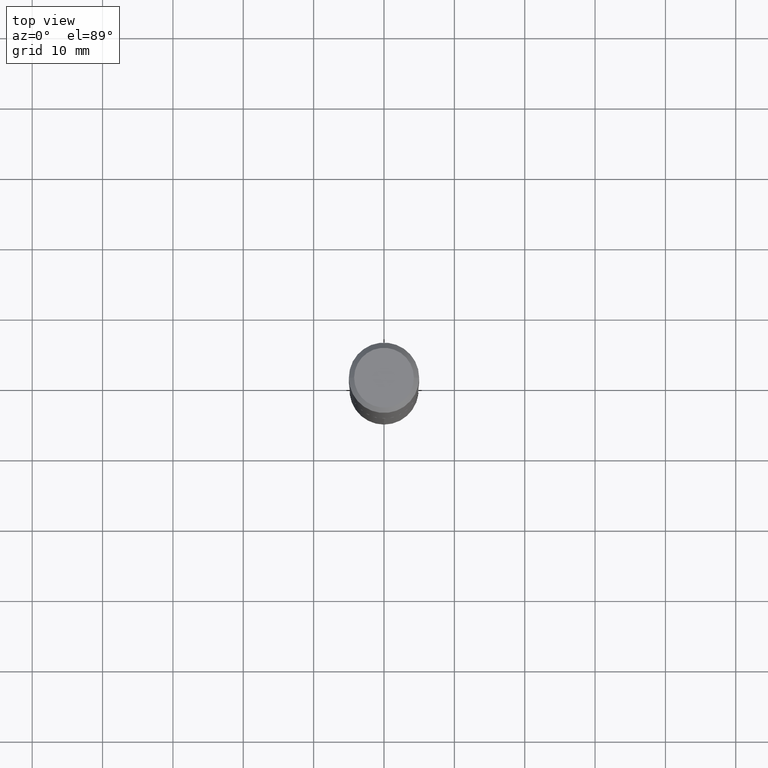
[diagram: clean part render]
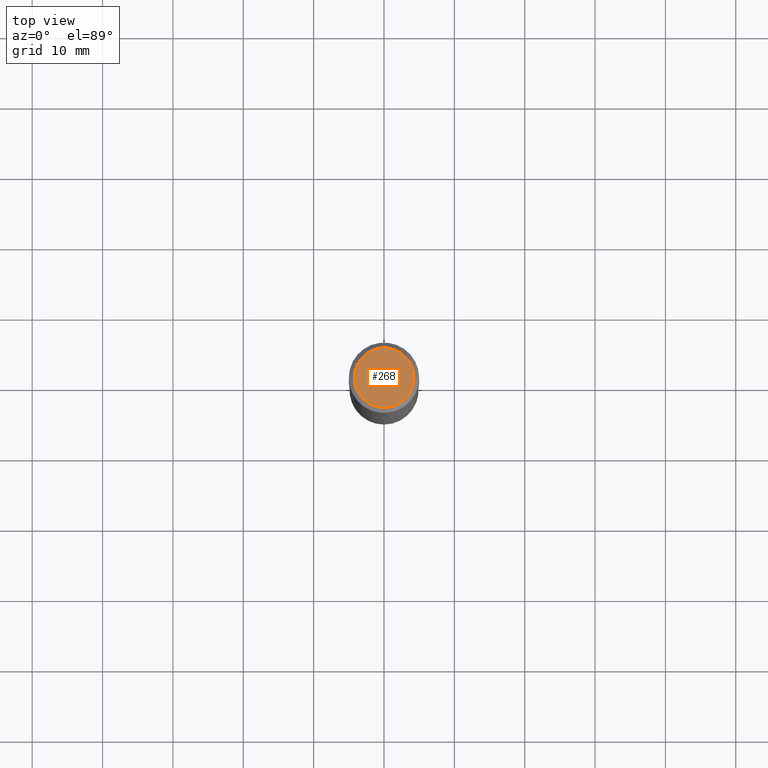
[diagram: same view with one face highlighted and labeled with its STEP entity id]
A machine part, top view. The second image highlights one B-rep face of the part: STEP entity #268.
In plain terms, the highlighted planar face has unit normal (0, -0, -1).
Its self-contained STEP definition (entity closure, byte-faithful):
#11 = CIRCLE ( 'NONE', #141, 0.1673224999999999851 ) ;
#13 = CARTESIAN_POINT ( 'NONE',  ( -0.1673224999999999851, 1.219954130253505263E-15, 4.096137381439757534E-18 ) ) ;
#17 = CARTESIAN_POINT ( 'NONE',  ( -1.001697619218021790E-46, 1.430158722866389718E-32, 4.096137381448108366E-18 ) ) ;
#65 = DIRECTION ( 'NONE',  ( 1.000000000000000000, -6.982962677686267499E-15, 4.876294436782262290E-29 ) ) ;
#104 = ORIENTED_EDGE ( 'NONE', *, *, #441, .T. ) ;
#126 = CARTESIAN_POINT ( 'NONE',  ( 0.1673224999999999851, -1.300749711163072397E-15, 4.096137381456741925E-18 ) ) ;
#141 = AXIS2_PLACEMENT_3D ( 'NONE', #461, #374, #65 ) ;
#158 = AXIS2_PLACEMENT_3D ( 'NONE', #17, #479, #162 ) ;
#162 = DIRECTION ( 'NONE',  ( 1.000000000000000000, -6.982962677686267499E-15, 4.876294436782262290E-29 ) ) ;
#210 = DIRECTION ( 'NONE',  ( -1.000000000000000000, 6.982962677686265922E-15, -4.876176775795935793E-29 ) ) ;
#242 = AXIS2_PLACEMENT_3D ( 'NONE', #410, #360, #210 ) ;
#264 = EDGE_CURVE ( 'NONE', #338, #384, #11, .T. ) ;
#268 = ADVANCED_FACE ( 'NONE', ( #315 ), #320, .F. ) ;
#281 = ORIENTED_EDGE ( 'NONE', *, *, #264, .T. ) ;
#308 = CIRCLE ( 'NONE', #158, 0.1673224999999999851 ) ;
#315 = FACE_OUTER_BOUND ( 'NONE', #414, .T. ) ;
#320 = PLANE ( 'NONE',  #242 ) ;
#338 = VERTEX_POINT ( 'NONE', #13 ) ;
#360 = DIRECTION ( 'NONE',  ( 2.438088387897960049E-29, -3.491481338843145188E-15, -1.000000000000000000 ) ) ;
#374 = DIRECTION ( 'NONE',  ( -2.445468806185136597E-29, 3.491481338843145583E-15, 1.000000000000000000 ) ) ;
#384 = VERTEX_POINT ( 'NONE', #126 ) ;
#410 = CARTESIAN_POINT ( 'NONE',  ( -5.008488096090108951E-47, 7.150793614331948590E-33, 2.048068690724054183E-18 ) ) ;
#414 = EDGE_LOOP ( 'NONE', ( #281, #104 ) ) ;
#441 = EDGE_CURVE ( 'NONE', #384, #338, #308, .T. ) ;
#461 = CARTESIAN_POINT ( 'NONE',  ( -1.001697619218021790E-46, 1.430158722866389718E-32, 4.096137381448108366E-18 ) ) ;
#479 = DIRECTION ( 'NONE',  ( -2.445468806185136597E-29, 3.491481338843145583E-15, 1.000000000000000000 ) ) ;